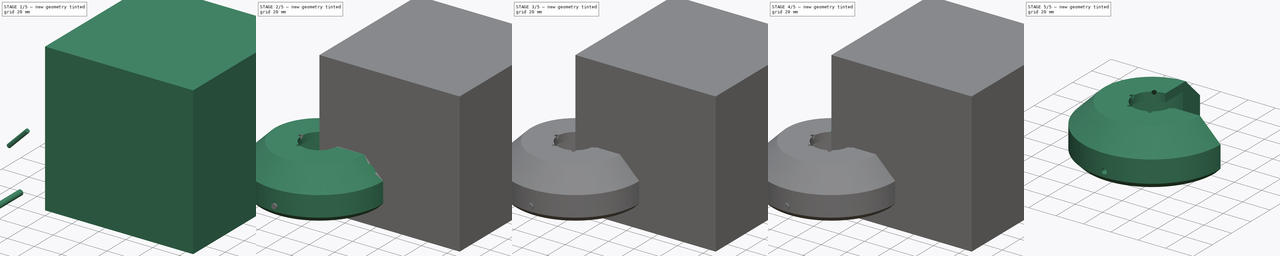
[diagram: build sequence overview — one tinted view per stage of 5, left to right]
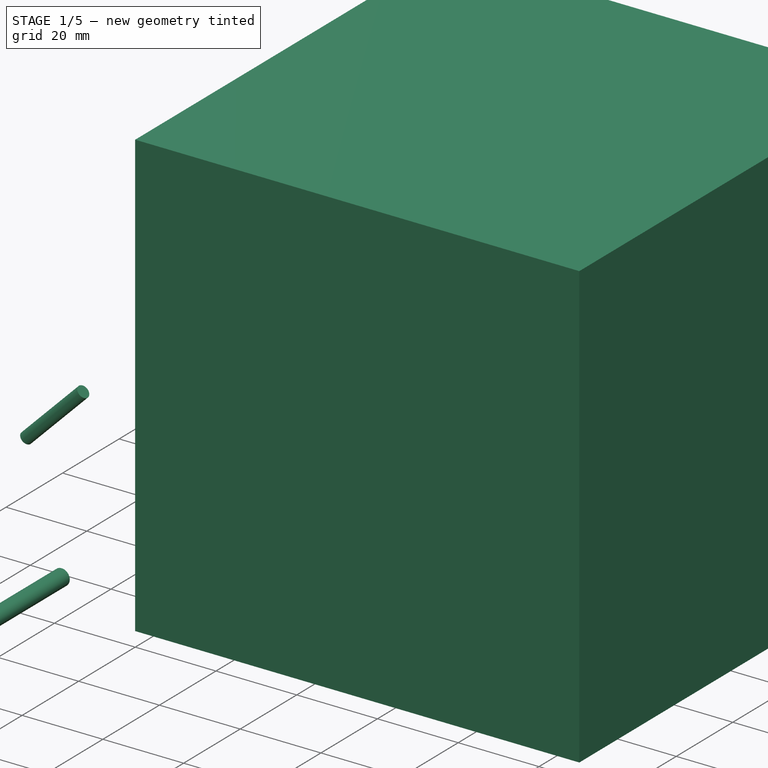
[diagram: stage 1 of 5 — iso view after this stage's code; geometry added in this stage tinted green]
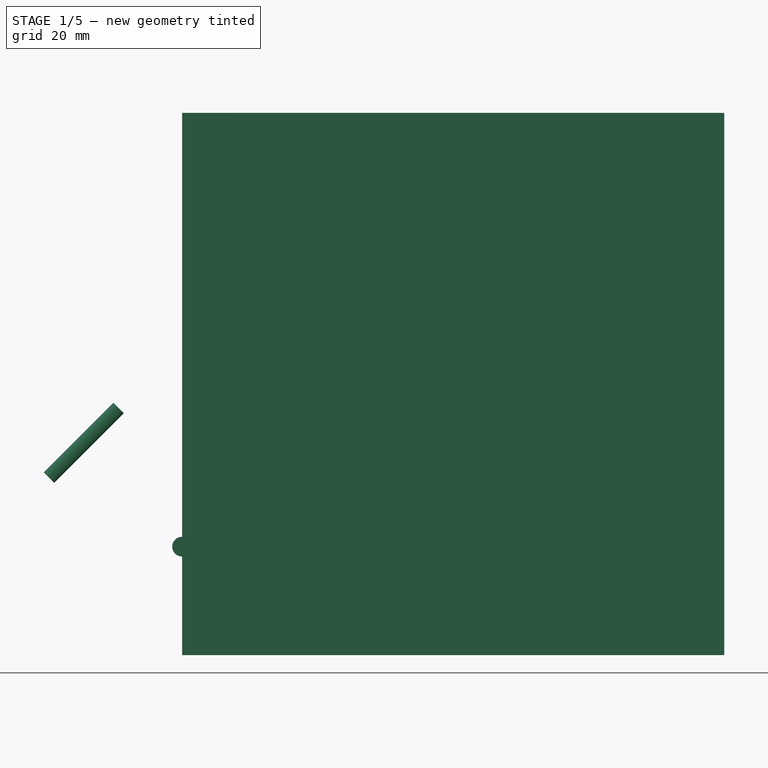
[diagram: stage 1 of 5 — front view after this stage's code; geometry added in this stage tinted green]
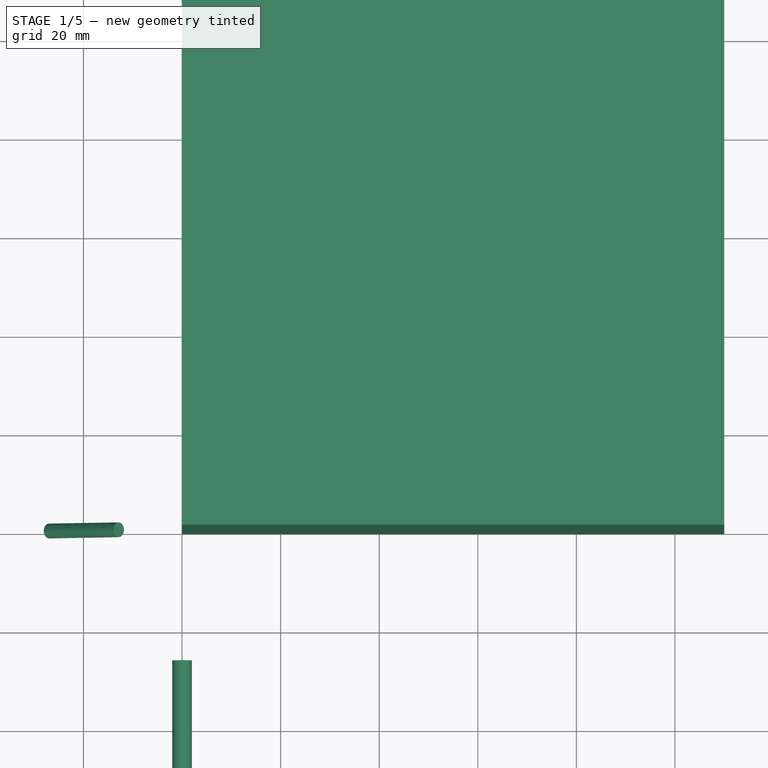
[diagram: stage 1 of 5 — top view after this stage's code; geometry added in this stage tinted green]
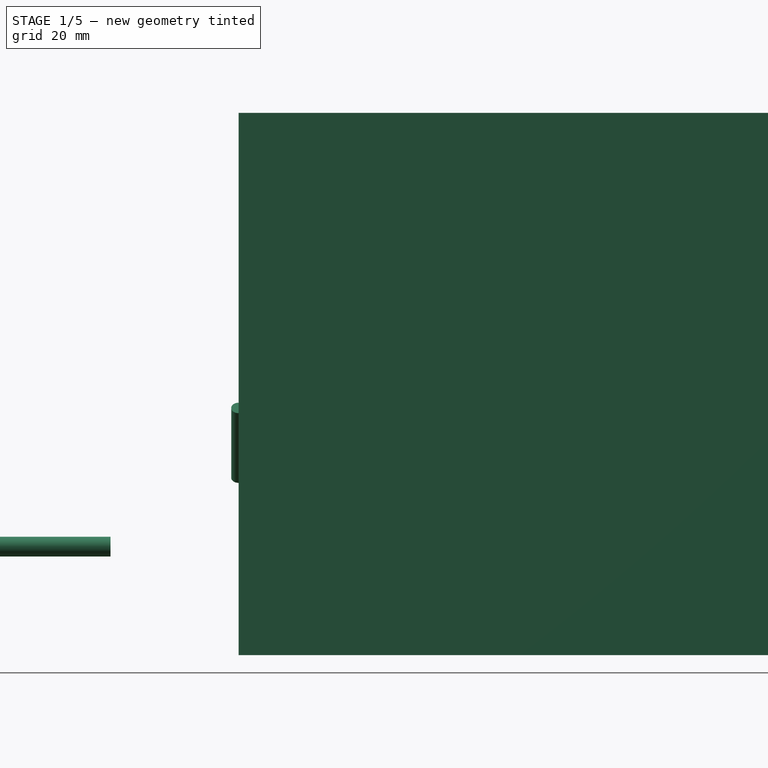
[diagram: stage 1 of 5 — right view after this stage's code; geometry added in this stage tinted green]
FCSTD DOCUMENT
Label: buzzer
objects: Part::Cut×8, Part::Cylinder×6, Sketcher::SketchObject×1, PartDesign::Revolution×1, Part::Feature×1, Part::Box×1
note: 18 computed .brp shape members not serialized (recipe doc carries the construction recipe); baked Part::Feature solids carry a one-line shape summary decoded from their .brp

FEATURE [Part::Cylinder] Cylinder
  Angle = 360
  Height = 20
  Placement = pos=(-27,0,-13) rot=(0,1,0;0.785397rad)
  Radius = 1.5
FEATURE [Part::Cylinder] Cylinder006  label="Cylinder006_cable"
  Angle = 360
  Height = 25
  Placement = pos=(0,-26,-27) rot=(1,0,0;1.5708rad)
  Radius = 2
FEATURE [Part::Box] Box  label="cut-box"
  Height = 110
  Length = 110
  Placement = pos=(0,0,-49) rot=(0,0,1;0rad)
  Width = 110
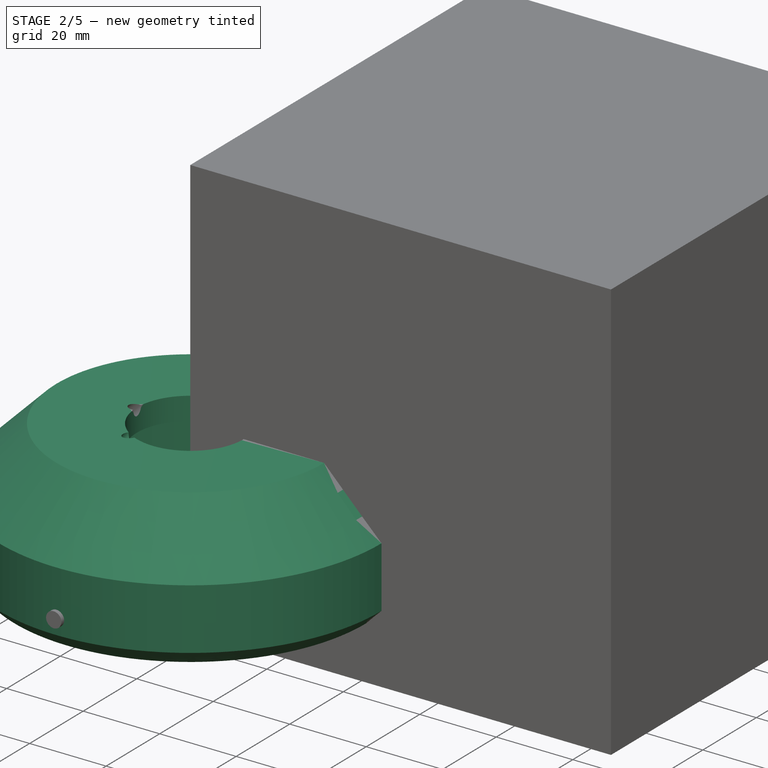
[diagram: stage 2 of 5 — iso view after this stage's code; geometry added in this stage tinted green]
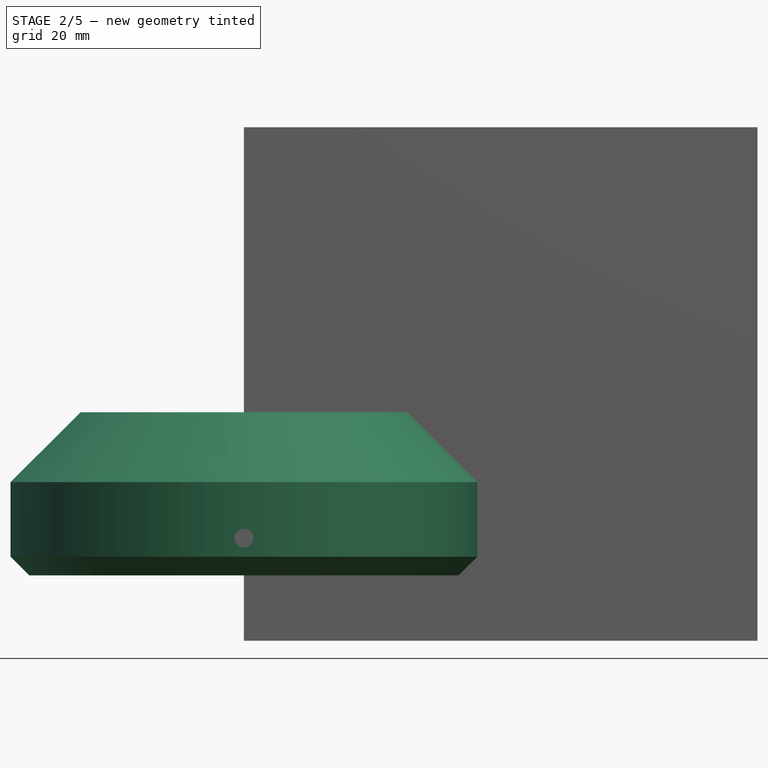
[diagram: stage 2 of 5 — front view after this stage's code; geometry added in this stage tinted green]
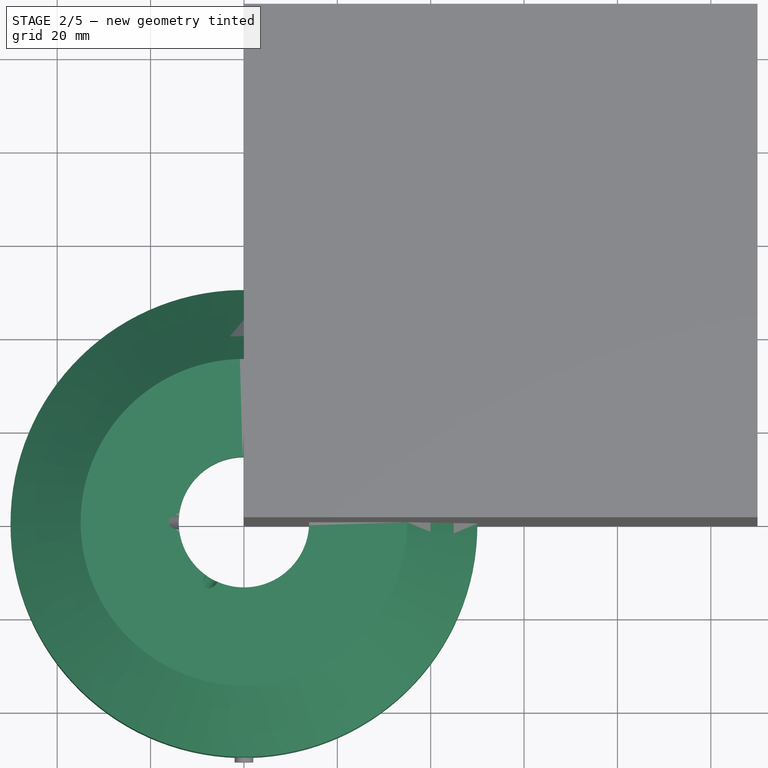
[diagram: stage 2 of 5 — top view after this stage's code; geometry added in this stage tinted green]
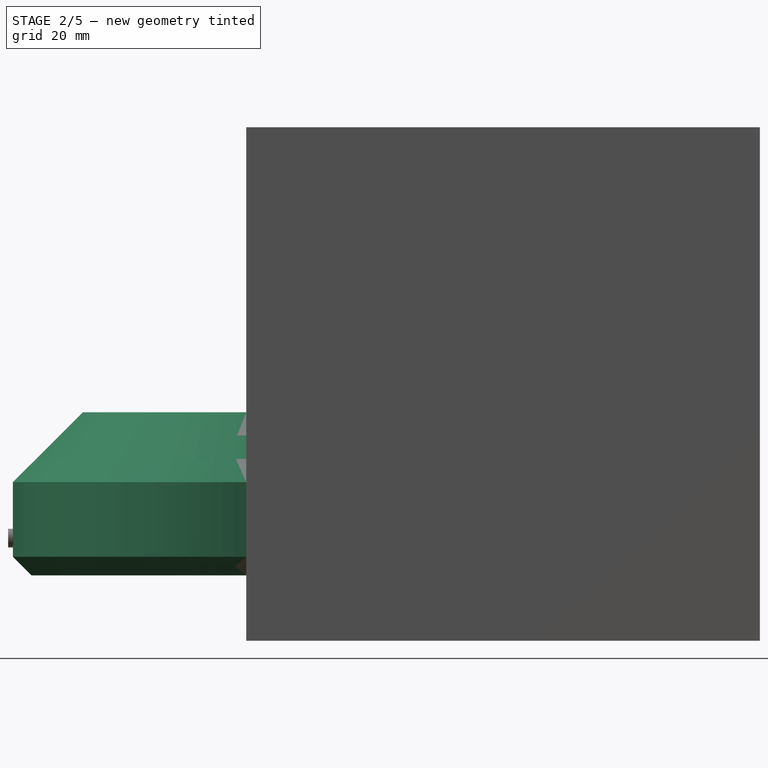
[diagram: stage 2 of 5 — right view after this stage's code; geometry added in this stage tinted green]
FEATURE [Sketcher::SketchObject] Sketch
  Placement = pos=(0,0,0) rot=(1,0,0;1.5708rad)
  sketch-geometry (10):
    g0: LineSegment StartX=-13.9651 StartY=-0.044329 StartZ=0 EndX=-13.9651 EndY=-6 EndZ=0
    g1: LineSegment StartX=-13.9651 StartY=-6 StartZ=0 EndX=-32 EndY=-6 EndZ=0
    g2: LineSegment StartX=-32 StartY=-6 StartZ=0 EndX=-32 EndY=-28.2649 EndZ=0
    g3: LineSegment StartX=-32 StartY=-28.2649 StartZ=0 EndX=-37 EndY=-28.2649 EndZ=0
    g4: LineSegment StartX=-37 StartY=-28.2649 StartZ=0 EndX=-37 EndY=-35 EndZ=0
    g5: LineSegment StartX=-37 StartY=-35 StartZ=0 EndX=-46 EndY=-35 EndZ=0
    g6: LineSegment StartX=-46 StartY=-35 StartZ=0 EndX=-50 EndY=-31 EndZ=0
    g7: LineSegment StartX=-50 StartY=-31 StartZ=0 EndX=-50 EndY=-15.0291 EndZ=0
    g8: LineSegment StartX=-50 StartY=-15.0291 StartZ=0 EndX=-34.9793 EndY=-0.044329 EndZ=0
    g9: LineSegment StartX=-34.9793 StartY=-0.044329 StartZ=0 EndX=-13.9651 EndY=-0.044329 EndZ=0
  constraints (18):
    c: Vertical(g0)
    c: Coincident(g0,g1)
    c: Horizontal(g1)
    c: Coincident(g1,g2)
    c: Vertical(g2)
    c: Coincident(g2,g3)
    c: Horizontal(g3)
    c: Coincident(g3,g4)
    c: Vertical(g4)
    c: Coincident(g4,g5)
    c: Horizontal(g5)
    c: Coincident(g5,g6)
    c: Coincident(g6,g7)
    c: Vertical(g7)
    c: Coincident(g7,g8)
    c: Coincident(g8,g9)
    c: Coincident(g9,g0)
    c: Horizontal(g9)
FEATURE [PartDesign::Revolution] Revolution
  Angle = 360
  Axis = (0,1,0)
  Base = (0,0,0)
  Sketch = -> Sketch
FEATURE [Part::Cut] Cut
  Base = -> Revolution
  Tool = -> Cylinder
FEATURE [Part::Cut] Cut001
  Base = -> Cut
  Tool = -> Cylinder001
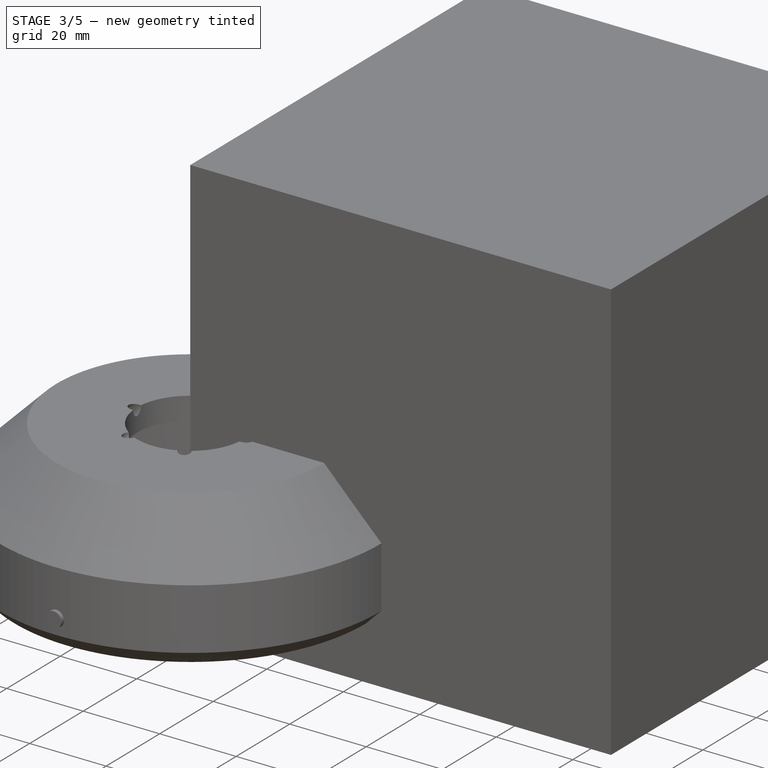
[diagram: stage 3 of 5 — iso view after this stage's code; geometry added in this stage tinted green]
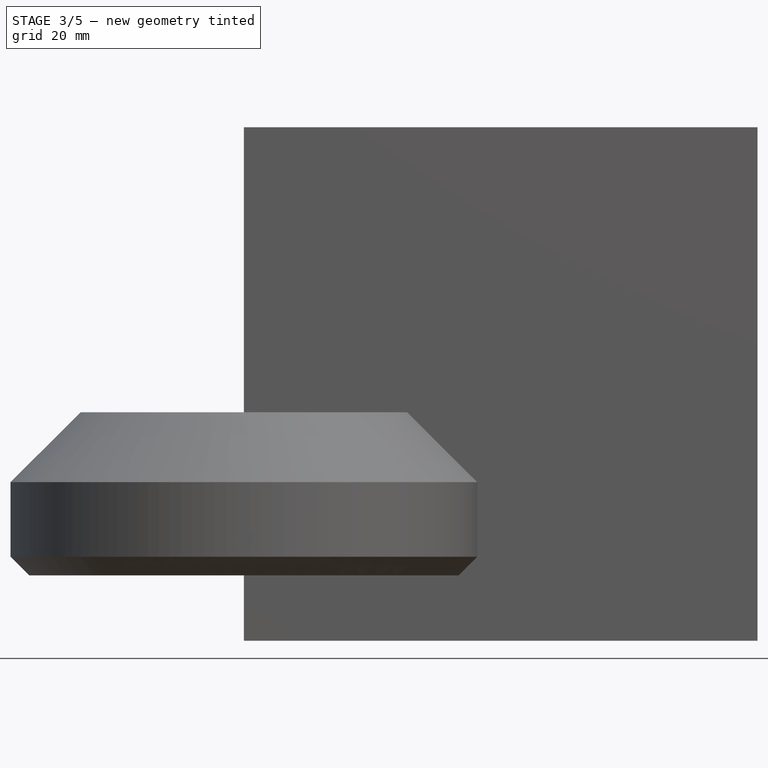
[diagram: stage 3 of 5 — front view after this stage's code; geometry added in this stage tinted green]
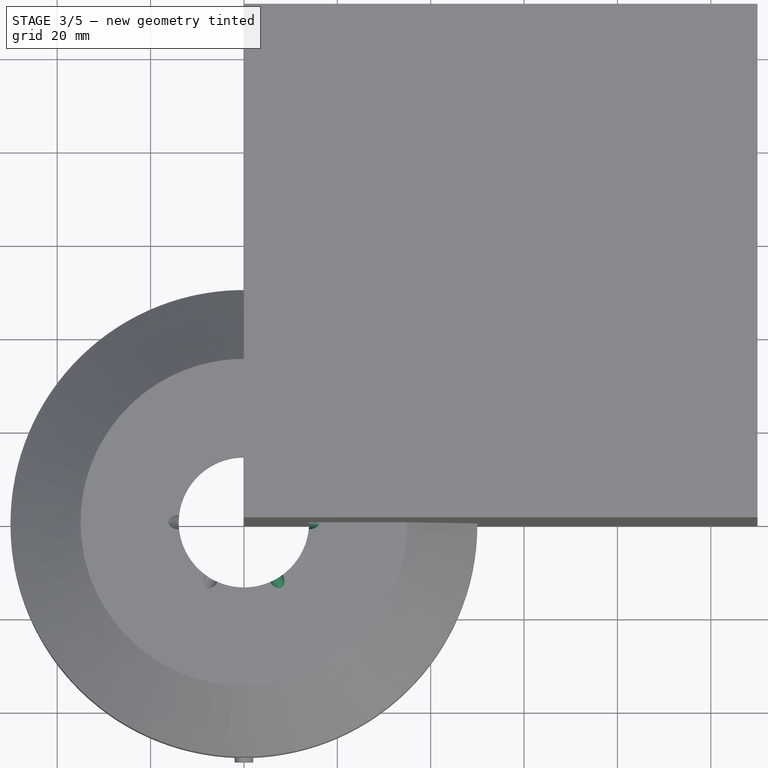
[diagram: stage 3 of 5 — top view after this stage's code; geometry added in this stage tinted green]
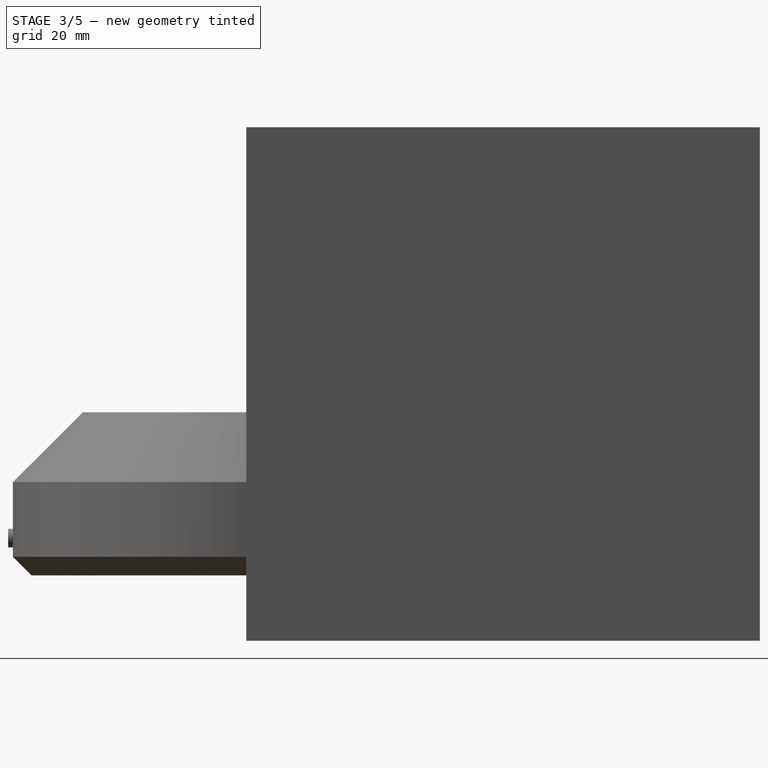
[diagram: stage 3 of 5 — right view after this stage's code; geometry added in this stage tinted green]
FEATURE [Part::Feature] Cylinder001
  Placement = pos=(-13.5,-23.3827,-13) rot=(-0.318975,0.552482,0.770077;1.28666rad)
  shape: bbox 9.877 x 14.62 x 16.26 mm, 3 faces (baked)
FEATURE [Part::Cylinder] Cylinder002
  Angle = 360
  Height = 20
  Placement = pos=(13.5,-23.3827,-13) rot=(-0.373671,0.215739,0.902123;2.18123rad)
  Radius = 1.5
FEATURE [Part::Cylinder] Cylinder003
  Angle = 360
  Height = 20
  Placement = pos=(27,0,-13) rot=(-0.382683,0,0.92388;3.14159rad)
  Radius = 1.5
FEATURE [Part::Cut] Cut002
  Base = -> Cut001
  Tool = -> Cylinder002
FEATURE [Part::Cut] Cut003
  Base = -> Cut002
  Tool = -> Cylinder003
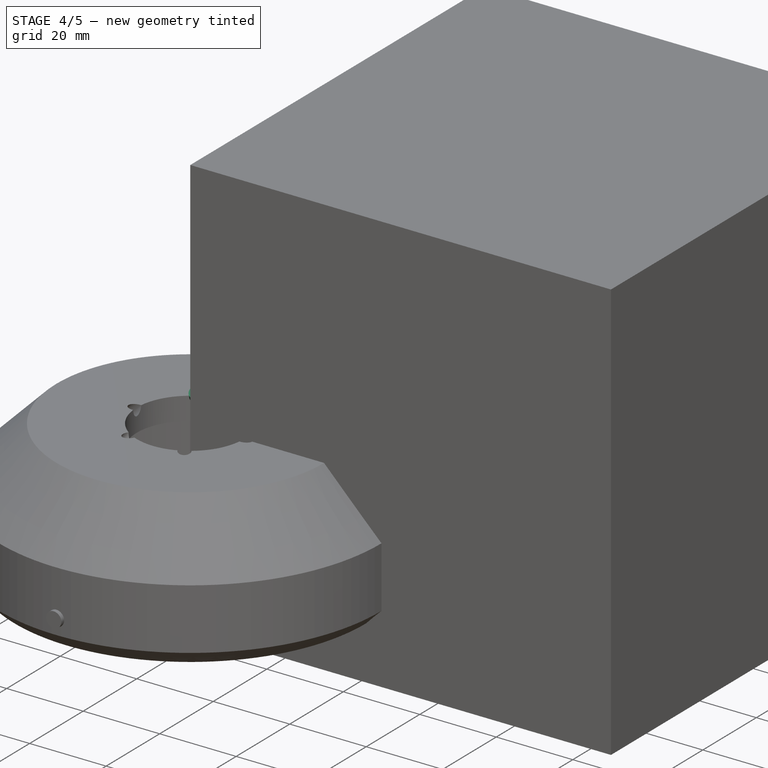
[diagram: stage 4 of 5 — iso view after this stage's code; geometry added in this stage tinted green]
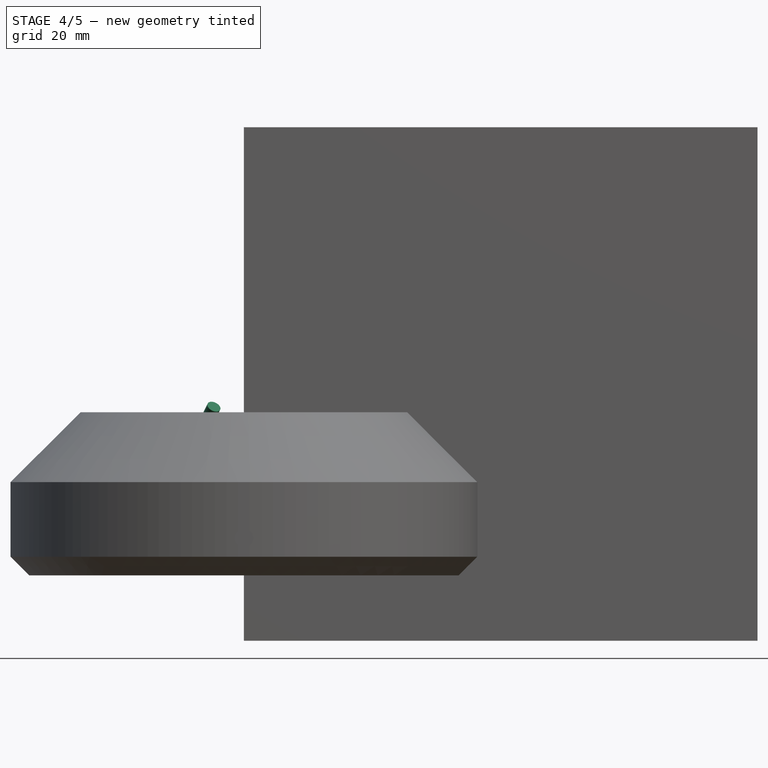
[diagram: stage 4 of 5 — front view after this stage's code; geometry added in this stage tinted green]
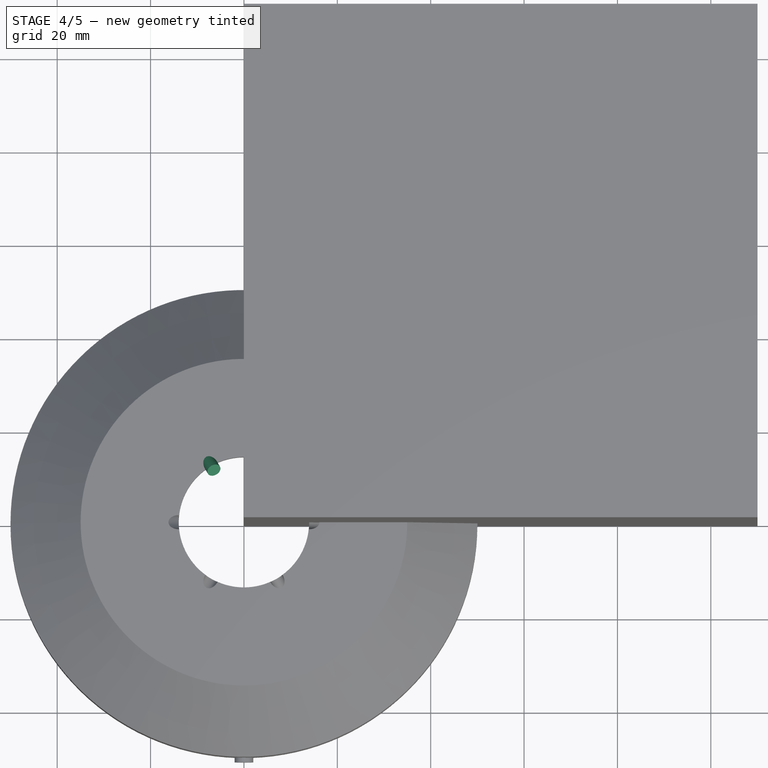
[diagram: stage 4 of 5 — top view after this stage's code; geometry added in this stage tinted green]
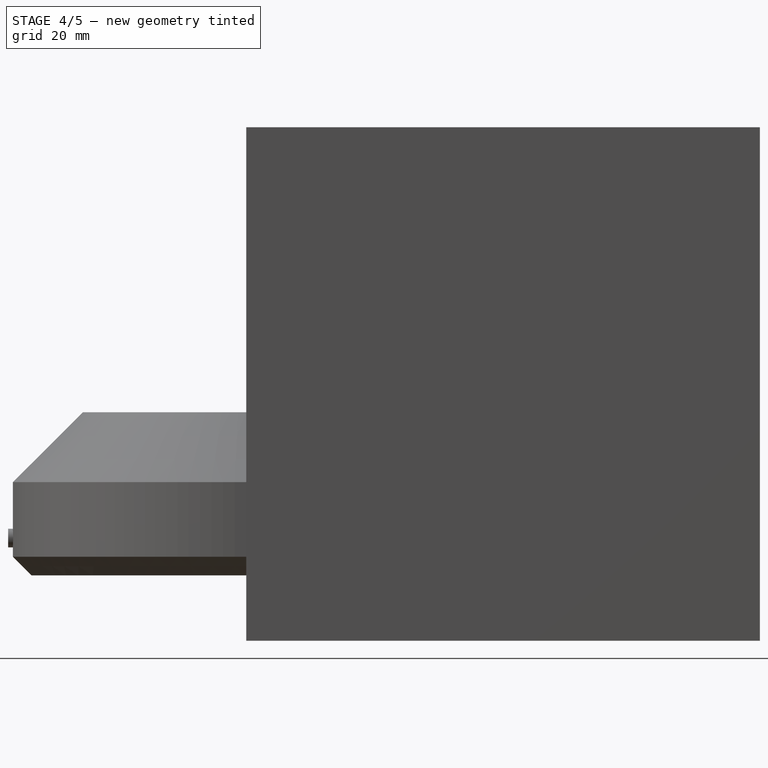
[diagram: stage 4 of 5 — right view after this stage's code; geometry added in this stage tinted green]
FEATURE [Part::Cylinder] Cylinder004
  Angle = 360
  Height = 20
  Placement = pos=(13.5,23.3827,-13) rot=(-0.373671,-0.215739,0.902123;4.10196rad)
  Radius = 1.5
FEATURE [Part::Cylinder] Cylinder005
  Angle = 360
  Height = 20
  Placement = pos=(-13.5,23.3827,-13) rot=(0.318975,0.552482,-0.770077;1.28666rad)
  Radius = 1.5
FEATURE [Part::Cut] Cut004
  Base = -> Cut003
  Tool = -> Cylinder004
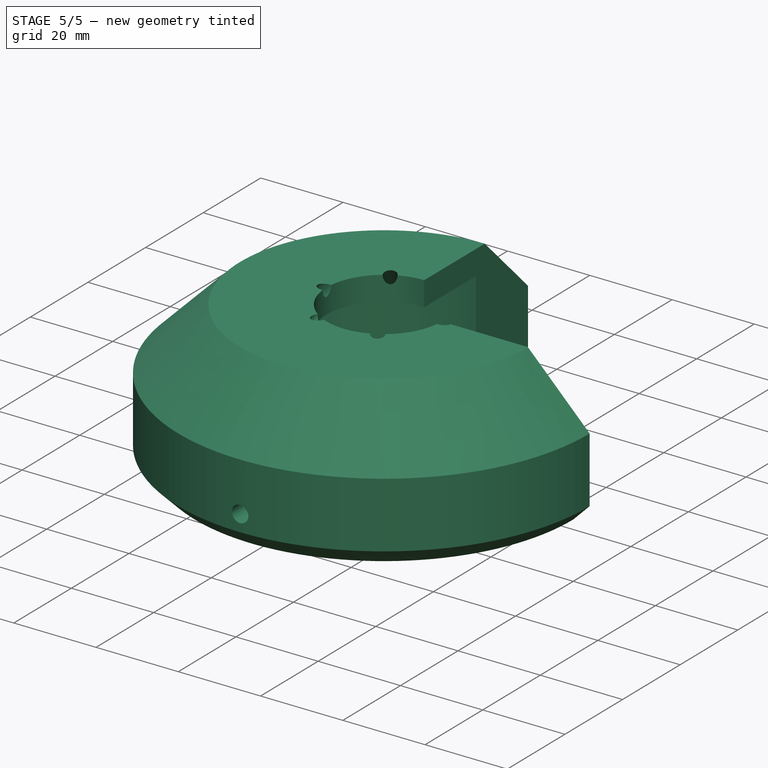
[diagram: stage 5 of 5 — iso view after this stage's code; geometry added in this stage tinted green]
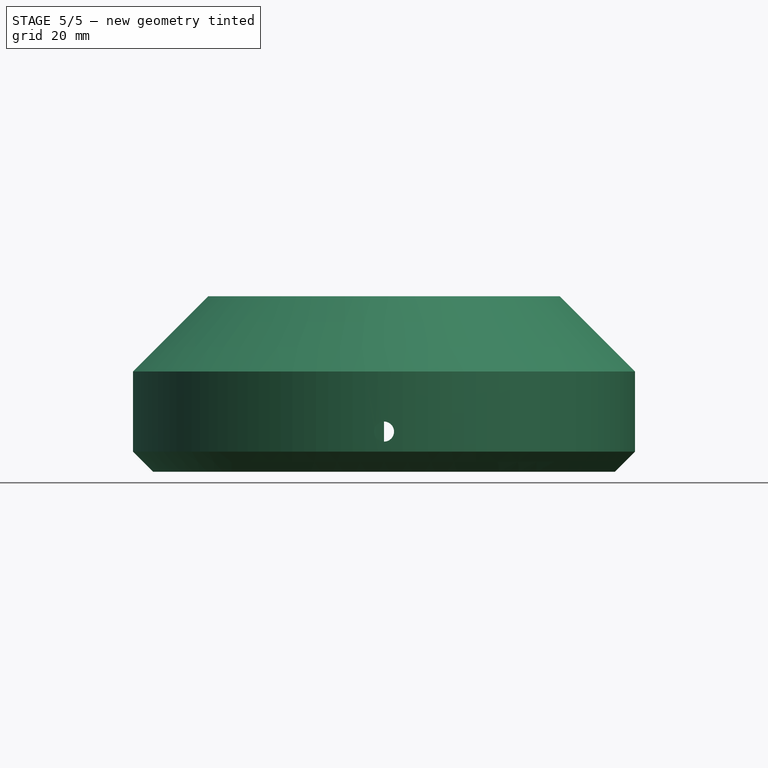
[diagram: stage 5 of 5 — front view after this stage's code; geometry added in this stage tinted green]
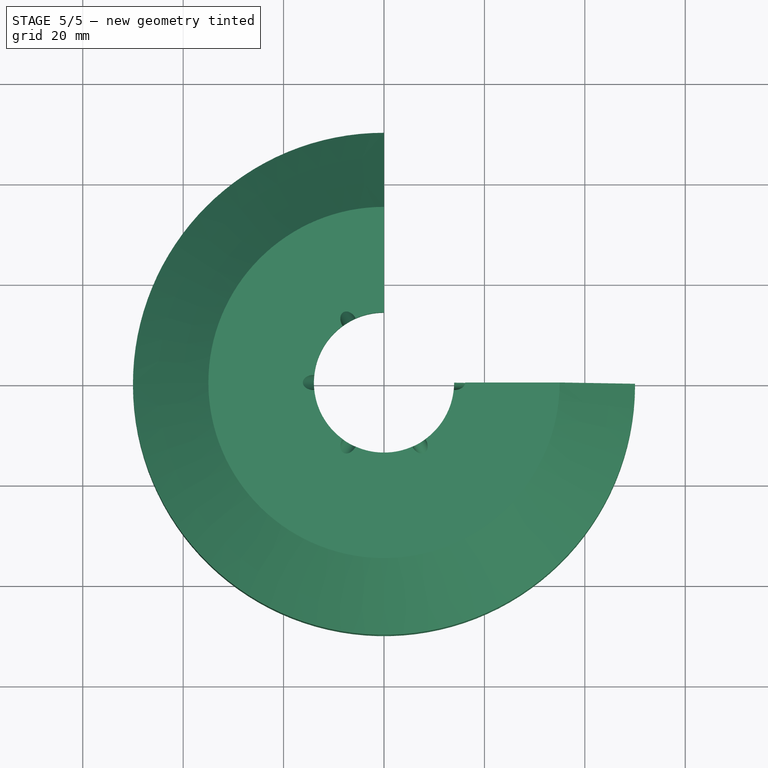
[diagram: stage 5 of 5 — top view after this stage's code; geometry added in this stage tinted green]
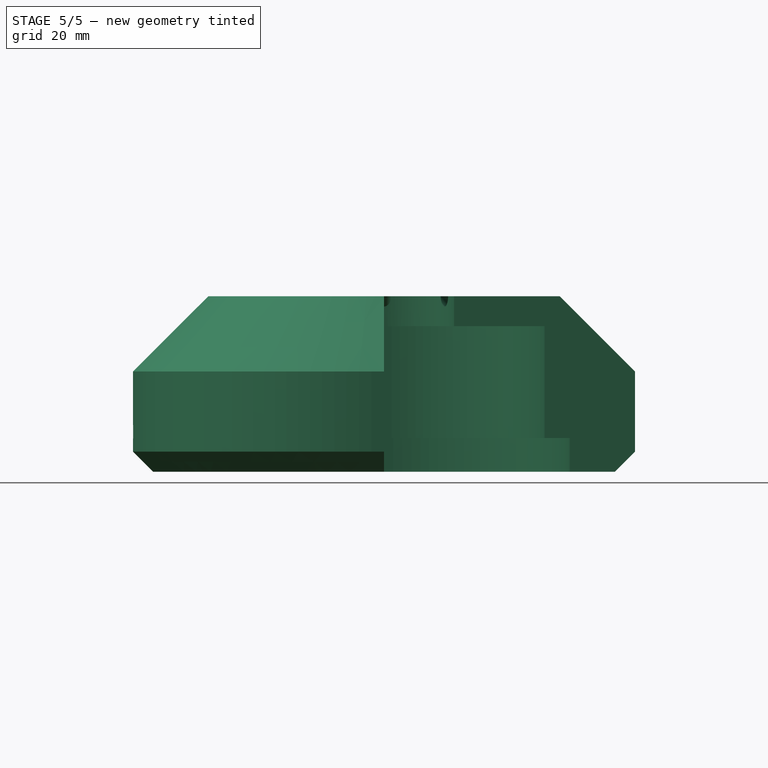
[diagram: stage 5 of 5 — right view after this stage's code; geometry added in this stage tinted green]
FEATURE [Part::Cut] Cut005
  Base = -> Cut004
  Tool = -> Cylinder005
FEATURE [Part::Cut] Cut006
  Base = -> Cut005
  Tool = -> Cylinder006
FEATURE [Part::Cut] Cut007
  Base = -> Cut006
  Tool = -> Box
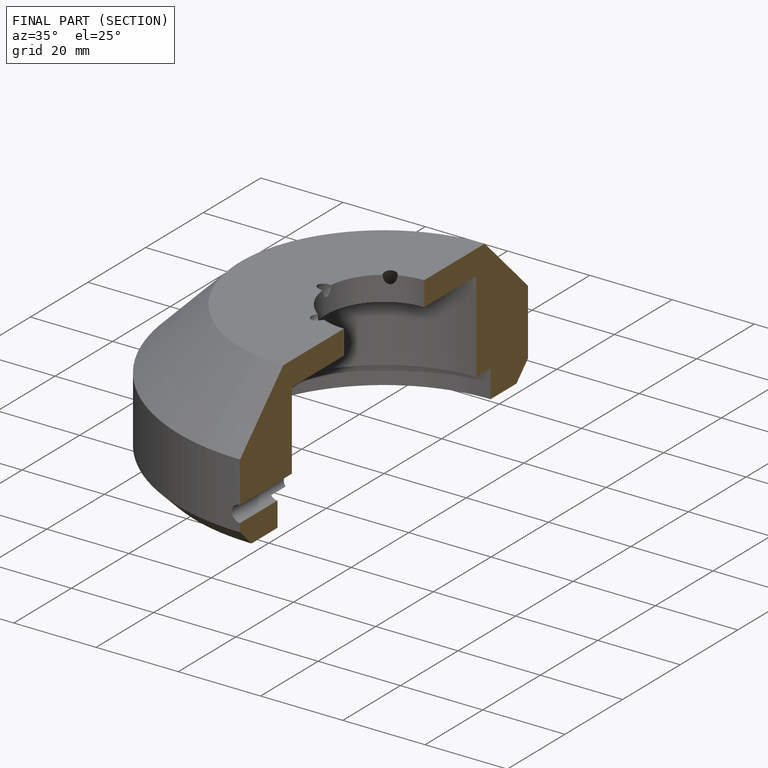
[diagram: finished part — half-section view (interior)]
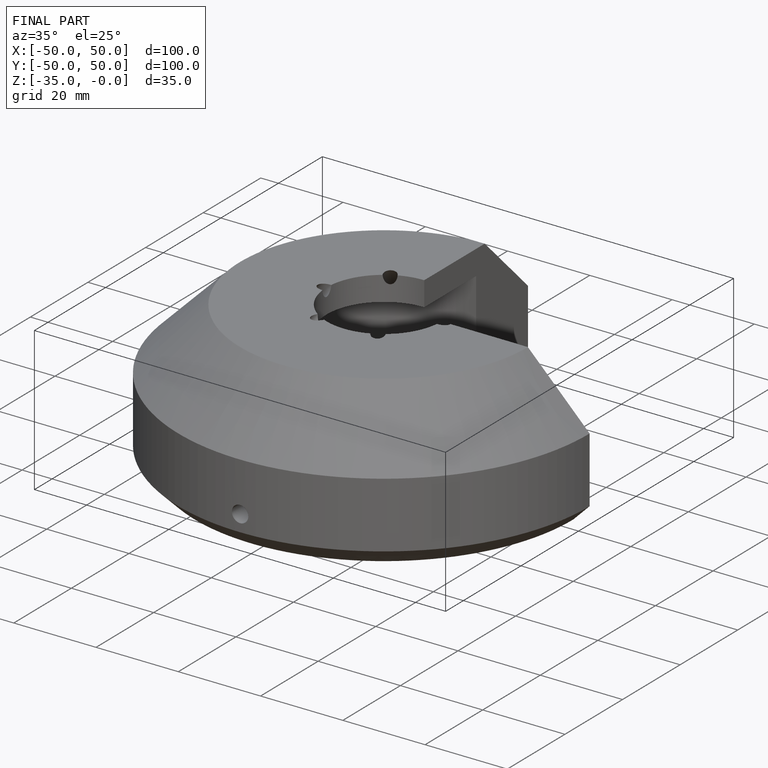
[diagram: finished part — iso view with bounding-box wireframe]
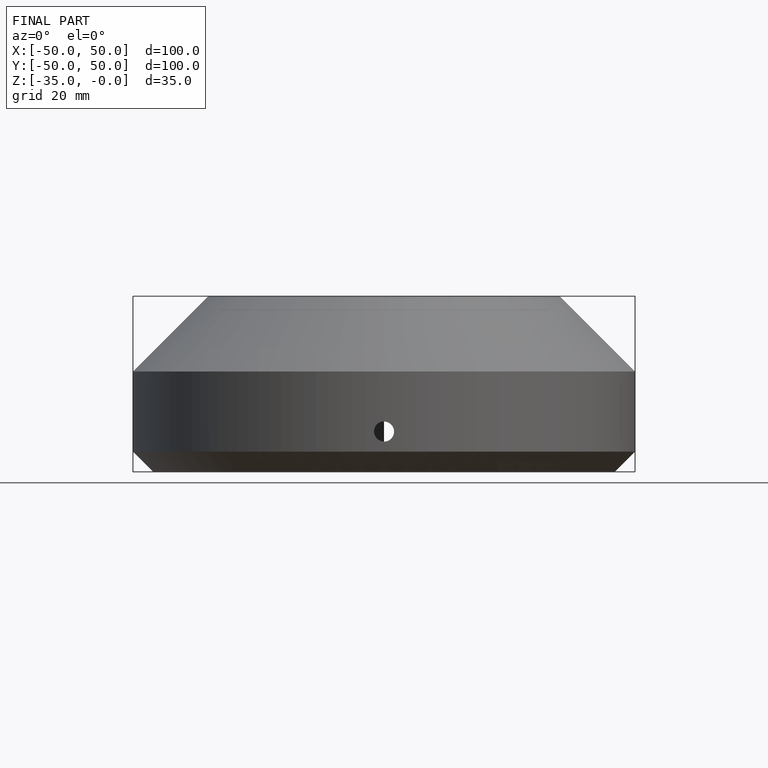
[diagram: finished part — front view with bounding-box wireframe]
